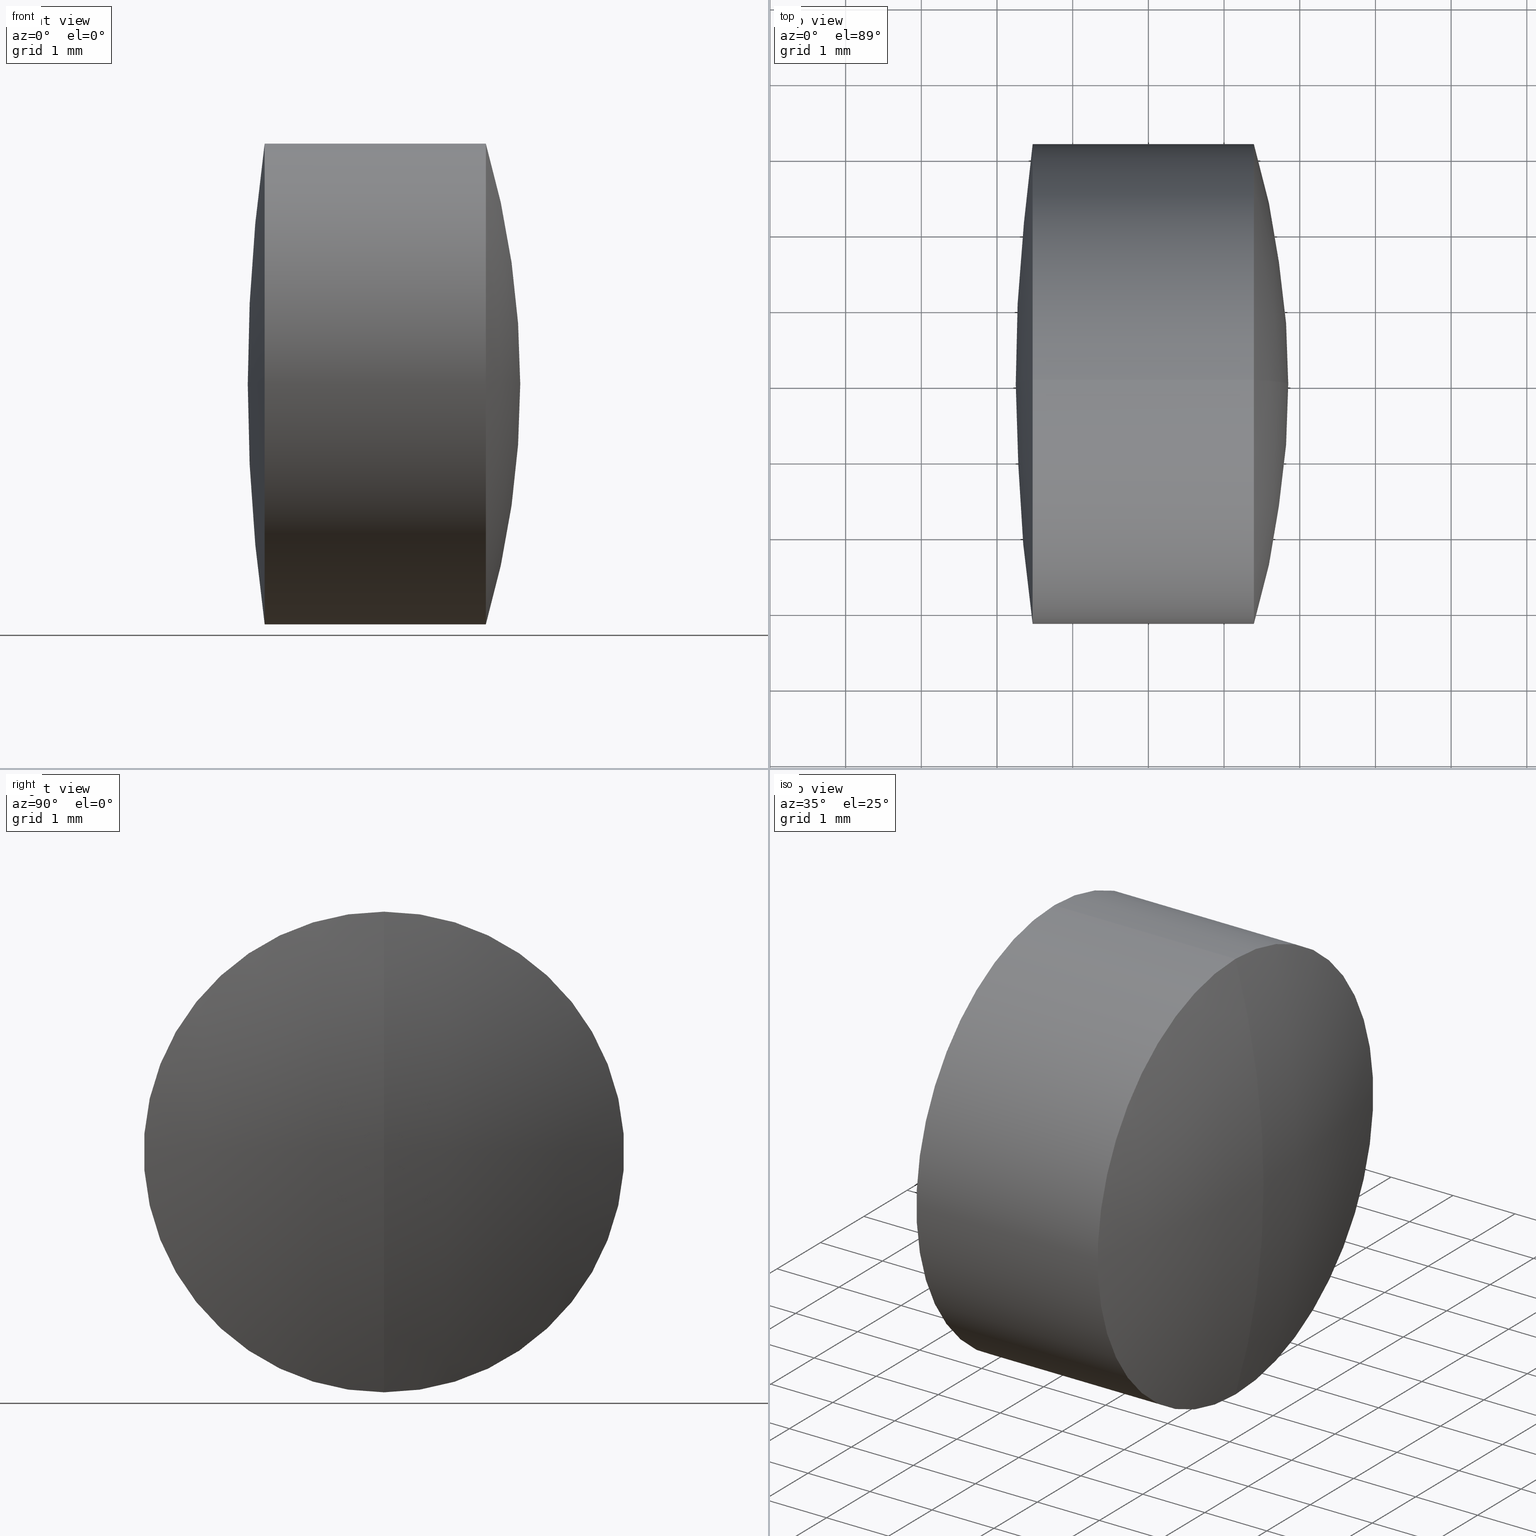
[diagram: canonical four-view strip — front | top / right | iso, engineering-drawing reading convention]
A machine part, canonical four-view strip (front | top / right | iso — engineering-drawing reading convention). The complete STEP part file that produces these views, byte-faithful:
ISO-10303-21;
HEADER;
FILE_DESCRIPTION (( 'STEP AP214' ),
    '1' );
FILE_NAME ('145149.STEP',
    '2019-06-06T06:00:08',
    ( 'user' ),
    ( '΢���й�' ),
    'SwSTEP 2.0',
    'SolidWorks 2016',
    '' );
FILE_SCHEMA (( 'AUTOMOTIVE_DESIGN' ));
ENDSEC;

DATA;
#1 =( NAMED_UNIT ( * ) SI_UNIT ( $, .STERADIAN. ) SOLID_ANGLE_UNIT ( ) );
#2 = LINE ( 'NONE', #154, #38 ) ;
#3 = CARTESIAN_POINT ( 'NONE',  ( -1.342040515916890000, 0.0000000000000000000, 7.023840951586055500E-017 ) ) ;
#4 = PRESENTATION_LAYER_ASSIGNMENT (  '', '', ( #36 ) ) ;
#5 = DIRECTION ( 'NONE',  ( 1.000000000000000000, 0.0000000000000000000, 0.0000000000000000000 ) ) ;
#6 = DIRECTION ( 'NONE',  ( -0.0000000000000000000, -1.000000000000000000, -0.0000000000000000000 ) ) ;
#7 = EDGE_CURVE ( 'NONE', #101, #115, #194, .T. ) ;
#8 = DIRECTION ( 'NONE',  ( -0.0000000000000000000, 1.000000000000000000, 1.224646799147353200E-016 ) ) ;
#9 = FACE_OUTER_BOUND ( 'NONE', #245, .T. ) ;
#10 = ORIENTED_EDGE ( 'NONE', *, *, #323, .T. ) ;
#11 = ORIENTED_EDGE ( 'NONE', *, *, #141, .T. ) ;
#12 = EDGE_CURVE ( 'NONE', #299, #139, #310, .T. ) ;
#13 = EDGE_CURVE ( 'NONE', #185, #115, #188, .T. ) ;
#14 = EDGE_LOOP ( 'NONE', ( #35, #269, #340, #54 ) ) ;
#15 = CARTESIAN_POINT ( 'NONE',  ( 2.377028588039097600, 0.0000000000000000000, 0.0000000000000000000 ) ) ;
#16 = FACE_OUTER_BOUND ( 'NONE', #131, .T. ) ;
#17 = CARTESIAN_POINT ( 'NONE',  ( 23.94795948408310700, 0.0000000000000000000, -4.028288892016745600E-017 ) ) ;
#18 = FACE_OUTER_BOUND ( 'NONE', #100, .T. ) ;
#19 = AXIS2_PLACEMENT_3D ( 'NONE', #120, #59, #186 ) ;
#20 = ORIENTED_EDGE ( 'NONE', *, *, #13, .F. ) ;
#21 = DIRECTION ( 'NONE',  ( -1.000000000000000000, -0.0000000000000000000, -0.0000000000000000000 ) ) ;
#22 = AXIS2_PLACEMENT_3D ( 'NONE', #339, #55, #135 ) ;
#23 = DIRECTION ( 'NONE',  ( 0.0000000000000000000, 0.0000000000000000000, 1.000000000000000000 ) ) ;
#24 = FILL_AREA_STYLE_COLOUR ( '', #259 ) ;
#25 =( NAMED_UNIT ( * ) PLANE_ANGLE_UNIT ( ) SI_UNIT ( $, .RADIAN. ) );
#26 = SPHERICAL_SURFACE ( 'NONE', #230, 22.70000000000001700 ) ;
#27 = COLOUR_RGB ( '',1.000000000000000000, 1.000000000000000000, 1.000000000000000000 ) ;
#28 = PRESENTATION_LAYER_ASSIGNMENT (  '', '', ( #249 ) ) ;
#29 = ORIENTED_EDGE ( 'NONE', *, *, #13, .T. ) ;
#30 = ADVANCED_BREP_SHAPE_REPRESENTATION ( '145149', ( #128, #262, #79 ), #321 ) ;
#31 =( GEOMETRIC_REPRESENTATION_CONTEXT ( 3 ) GLOBAL_UNCERTAINTY_ASSIGNED_CONTEXT ( ( #133 ) ) GLOBAL_UNIT_ASSIGNED_CONTEXT ( ( #218, #108, #105 ) ) REPRESENTATION_CONTEXT ( 'NONE', 'WORKASPACE' ) );
#32 = CARTESIAN_POINT ( 'NONE',  ( -1.342040515916890000, 0.0000000000000000000, 7.023840951586055500E-017 ) ) ;
#33 = APPLICATION_PROTOCOL_DEFINITION ( 'draft international standard', 'automotive_design', 1998, #319 ) ;
#34 = LINE ( 'NONE', #207, #284 ) ;
#35 = ORIENTED_EDGE ( 'NONE', *, *, #48, .F. ) ;
#36 = STYLED_ITEM ( 'NONE', ( #301 ), #128 ) ;
#37 = CARTESIAN_POINT ( 'NONE',  ( 1.471096379993141400, 0.0000000000000000000, 0.0000000000000000000 ) ) ;
#38 = VECTOR ( 'NONE', #102, 1000.000000000000000 ) ;
#39 = ORIENTED_EDGE ( 'NONE', *, *, #208, .T. ) ;
#40 = CARTESIAN_POINT ( 'NONE',  ( 0.0000000000000000000, 0.0000000000000000000, 0.0000000000000000000 ) ) ;
#41 = ORIENTED_EDGE ( 'NONE', *, *, #141, .F. ) ;
#42 = DIRECTION ( 'NONE',  ( -0.0000000000000000000, 1.000000000000000000, 1.224646799147353200E-016 ) ) ;
#43 = ORIENTED_EDGE ( 'NONE', *, *, #125, .F. ) ;
#44 = DIRECTION ( 'NONE',  ( 0.0000000000000000000, 0.0000000000000000000, -1.000000000000000000 ) ) ;
#45 = EDGE_LOOP ( 'NONE', ( #173, #282, #272, #43 ) ) ;
#46 = DIRECTION ( 'NONE',  ( 0.0000000000000000000, -1.224646799147353200E-016, 1.000000000000000000 ) ) ;
#47 = DIRECTION ( 'NONE',  ( 0.0000000000000000000, 0.0000000000000000000, 1.000000000000000000 ) ) ;
#48 = EDGE_CURVE ( 'NONE', #115, #212, #34, .T. ) ;
#49 = PRODUCT ( '145149', '145149', '', ( #343 ) ) ;
#50 = DIRECTION ( 'NONE',  ( 0.0000000000000000000, 1.000000000000000000, 0.0000000000000000000 ) ) ;
#51 = CIRCLE ( 'NONE', #283, 3.174999999999999800 ) ;
#52 = SURFACE_SIDE_STYLE ('',( #243 ) ) ;
#53 = EDGE_CURVE ( 'NONE', #302, #335, #153, .T. ) ;
#54 = ORIENTED_EDGE ( 'NONE', *, *, #208, .F. ) ;
#55 = DIRECTION ( 'NONE',  ( -0.0000000000000000000, -1.000000000000000000, -0.0000000000000000000 ) ) ;
#56 = SPHERICAL_SURFACE ( 'NONE', #268, 4.889999999999999700 ) ;
#57 = AXIS2_PLACEMENT_3D ( 'NONE', #121, #169, #65 ) ;
#58 = CARTESIAN_POINT ( 'NONE',  ( -1.342040515916890000, 0.0000000000000000000, 7.023840951586055500E-017 ) ) ;
#59 = DIRECTION ( 'NONE',  ( -1.000000000000000000, -0.0000000000000000000, -0.0000000000000000000 ) ) ;
#60 = DIRECTION ( 'NONE',  ( 0.0000000000000000000, -1.000000000000000000, -1.224646799147353200E-016 ) ) ;
#61 = EDGE_LOOP ( 'NONE', ( #232, #157, #106 ) ) ;
#62 = AXIS2_PLACEMENT_3D ( 'NONE', #193, #6, #305 ) ;
#63 = SPHERICAL_SURFACE ( 'NONE', #324, 4.889999999999999700 ) ;
#64 = CARTESIAN_POINT ( 'NONE',  ( 1.471096379993142000, 0.0000000000000000000, 3.174999999999998500 ) ) ;
#65 = DIRECTION ( 'NONE',  ( 0.0000000000000000000, 0.0000000000000000000, -1.000000000000000000 ) ) ;
#66 = EDGE_CURVE ( 'NONE', #167, #299, #144, .T. ) ;
#67 = AXIS2_PLACEMENT_3D ( 'NONE', #126, #271, #129 ) ;
#68 = CARTESIAN_POINT ( 'NONE',  ( 1.471096379993142000, 3.888253587292844600E-016, -3.174999999999998500 ) ) ;
#69 = DIRECTION ( 'NONE',  ( -0.0000000000000000000, -1.000000000000000000, -0.0000000000000000000 ) ) ;
#70 = CARTESIAN_POINT ( 'NONE',  ( -0.5519199926577972300, 0.0000000000000000000, 3.174999999999998000 ) ) ;
#71 = UNCERTAINTY_MEASURE_WITH_UNIT (LENGTH_MEASURE( 1.000000000000000100E-005 ), #113, 'distance_accuracy_value', 'NONE');
#72 = EDGE_CURVE ( 'NONE', #182, #212, #266, .T. ) ;
#73 = SURFACE_SIDE_STYLE ('',( #329 ) ) ;
#74 = CIRCLE ( 'NONE', #291, 22.70000000000001700 ) ;
#75 = EDGE_LOOP ( 'NONE', ( #235, #10, #147, #110 ) ) ;
#76 = DIRECTION ( 'NONE',  ( 0.0000000000000000000, 1.000000000000000000, 0.0000000000000000000 ) ) ;
#77 = LINE ( 'NONE', #81, #326 ) ;
#78 = ORIENTED_EDGE ( 'NONE', *, *, #209, .T. ) ;
#79 = AXIS2_PLACEMENT_3D ( 'NONE', #40, #290, #5 ) ;
#80 = EDGE_LOOP ( 'NONE', ( #20, #296, #281 ) ) ;
#81 = CARTESIAN_POINT ( 'NONE',  ( -0.8160621761658039000, 0.0000000000000000000, 3.174999999999999800 ) ) ;
#82 = UNCERTAINTY_MEASURE_WITH_UNIT (LENGTH_MEASURE( 1.000000000000000100E-005 ), #142, 'distance_accuracy_value', 'NONE');
#83 = DIRECTION ( 'NONE',  ( 0.0000000000000000000, 1.224646799147353200E-016, -1.000000000000000000 ) ) ;
#84 = CYLINDRICAL_SURFACE ( 'NONE', #307, 3.174999999999998000 ) ;
#85 = EDGE_LOOP ( 'NONE', ( #320, #346, #11 ) ) ;
#86 = EDGE_CURVE ( 'NONE', #115, #101, #104, .T. ) ;
#87 = DIRECTION ( 'NONE',  ( 0.0000000000000000000, 1.000000000000000000, -0.0000000000000000000 ) ) ;
#88 = FILL_AREA_STYLE ('',( #338 ) ) ;
#89 = DIRECTION ( 'NONE',  ( -1.000000000000000000, -0.0000000000000000000, -0.0000000000000000000 ) ) ;
#90 = EDGE_LOOP ( 'NONE', ( #221, #306, #124 ) ) ;
#91 = DIRECTION ( 'NONE',  ( 0.0000000000000000000, 0.0000000000000000000, -1.000000000000000000 ) ) ;
#92 = ORIENTED_EDGE ( 'NONE', *, *, #72, .T. ) ;
#93 = SURFACE_STYLE_USAGE ( .BOTH. , #331 ) ;
#94 = DIRECTION ( 'NONE',  ( -0.0000000000000000000, -1.000000000000000000, -0.0000000000000000000 ) ) ;
#95 = COLOUR_RGB ( '',1.000000000000000000, 1.000000000000000000, 1.000000000000000000 ) ;
#96 = AXIS2_PLACEMENT_3D ( 'NONE', #114, #345, #199 ) ;
#97 = DIRECTION ( 'NONE',  ( 0.0000000000000000000, 0.0000000000000000000, 1.000000000000000000 ) ) ;
#98 = DIRECTION ( 'NONE',  ( 0.0000000000000000000, 0.0000000000000000000, -1.000000000000000000 ) ) ;
#99 = FACE_OUTER_BOUND ( 'NONE', #61, .T. ) ;
#100 = EDGE_LOOP ( 'NONE', ( #156, #295, #78 ) ) ;
#101 = VERTEX_POINT ( 'NONE', #270 ) ;
#102 = DIRECTION ( 'NONE',  ( -1.000000000000000000, -0.0000000000000000000, -0.0000000000000000000 ) ) ;
#103 = AXIS2_PLACEMENT_3D ( 'NONE', #160, #292, #170 ) ;
#104 = CIRCLE ( 'NONE', #151, 3.174999999999998000 ) ;
#105 =( NAMED_UNIT ( * ) SI_UNIT ( $, .STERADIAN. ) SOLID_ANGLE_UNIT ( ) );
#106 = ORIENTED_EDGE ( 'NONE', *, *, #275, .F. ) ;
#107 = AXIS2_PLACEMENT_3D ( 'NONE', #127, #87, #47 ) ;
#108 =( NAMED_UNIT ( * ) PLANE_ANGLE_UNIT ( ) SI_UNIT ( $, .RADIAN. ) );
#109 = CARTESIAN_POINT ( 'NONE',  ( 2.377028588039097600, 0.0000000000000000000, 0.0000000000000000000 ) ) ;
#110 = ORIENTED_EDGE ( 'NONE', *, *, #112, .F. ) ;
#111 = DIRECTION ( 'NONE',  ( 0.0000000000000000000, 0.0000000000000000000, 1.000000000000000000 ) ) ;
#112 = EDGE_CURVE ( 'NONE', #335, #167, #77, .T. ) ;
#113 =( LENGTH_UNIT ( ) NAMED_UNIT ( * ) SI_UNIT ( .MILLI., .METRE. ) );
#114 = CARTESIAN_POINT ( 'NONE',  ( -0.5519199926577972300, 0.0000000000000000000, 0.0000000000000000000 ) ) ;
#115 = VERTEX_POINT ( 'NONE', #189 ) ;
#116 = ADVANCED_FACE ( 'NONE', ( #99 ), #304, .T. ) ;
#117 = CARTESIAN_POINT ( 'NONE',  ( 23.94795948408310700, 0.0000000000000000000, -4.028288892016745600E-017 ) ) ;
#118 = AXIS2_PLACEMENT_3D ( 'NONE', #37, #322, #97 ) ;
#119 = CIRCLE ( 'NONE', #247, 3.174999999999998500 ) ;
#120 = CARTESIAN_POINT ( 'NONE',  ( 1.471096379993141400, 0.0000000000000000000, 0.0000000000000000000 ) ) ;
#121 = CARTESIAN_POINT ( 'NONE',  ( -1.342040515916890000, 0.0000000000000000000, 7.023840951586055500E-017 ) ) ;
#122 =( NAMED_UNIT ( * ) PLANE_ANGLE_UNIT ( ) SI_UNIT ( $, .RADIAN. ) );
#123 = VERTEX_POINT ( 'NONE', #303 ) ;
#124 = ORIENTED_EDGE ( 'NONE', *, *, #209, .F. ) ;
#125 = EDGE_CURVE ( 'NONE', #299, #167, #258, .T. ) ;
#126 = CARTESIAN_POINT ( 'NONE',  ( 23.94795948408310700, 0.0000000000000000000, -4.028288892016745600E-017 ) ) ;
#127 = CARTESIAN_POINT ( 'NONE',  ( -1.342040515916890000, 0.0000000000000000000, 7.023840951586055500E-017 ) ) ;
#128 = MANIFOLD_SOLID_BREP ( '��ת1', #333 ) ;
#129 = DIRECTION ( 'NONE',  ( 0.0000000000000000000, 0.0000000000000000000, 1.000000000000000000 ) ) ;
#130 = PRODUCT_DEFINITION_FORMATION_WITH_SPECIFIED_SOURCE ( '�κ�', '', #49, .NOT_KNOWN. ) ;
#131 = EDGE_LOOP ( 'NONE', ( #236, #179, #228 ) ) ;
#132 = FILL_AREA_STYLE ('',( #278 ) ) ;
#133 = UNCERTAINTY_MEASURE_WITH_UNIT (LENGTH_MEASURE( 1.000000000000000100E-005 ), #218, 'distance_accuracy_value', 'NONE');
#134 = SHAPE_DEFINITION_REPRESENTATION ( #226, #30 ) ;
#135 = DIRECTION ( 'NONE',  ( 0.0000000000000000000, 0.0000000000000000000, -1.000000000000000000 ) ) ;
#136 = DIRECTION ( 'NONE',  ( 0.0000000000000000000, 0.0000000000000000000, 1.000000000000000000 ) ) ;
#137 = CYLINDRICAL_SURFACE ( 'NONE', #96, 3.174999999999998000 ) ;
#138 = AXIS2_PLACEMENT_3D ( 'NONE', #313, #205, #184 ) ;
#139 = VERTEX_POINT ( 'NONE', #287 ) ;
#140 = FILL_AREA_STYLE ('',( #24 ) ) ;
#141 = EDGE_CURVE ( 'NONE', #123, #212, #119, .T. ) ;
#142 =( LENGTH_UNIT ( ) NAMED_UNIT ( * ) SI_UNIT ( .MILLI., .METRE. ) );
#143 = ADVANCED_FACE ( 'NONE', ( #211 ), #255, .T. ) ;
#144 = CIRCLE ( 'NONE', #19, 3.174999999999999800 ) ;
#145 = ADVANCED_FACE ( 'NONE', ( #9 ), #294, .T. ) ;
#146 = FACE_OUTER_BOUND ( 'NONE', #168, .T. ) ;
#147 = ORIENTED_EDGE ( 'NONE', *, *, #66, .F. ) ;
#148 = DIRECTION ( 'NONE',  ( -1.000000000000000000, -0.0000000000000000000, -0.0000000000000000000 ) ) ;
#149 = SPHERICAL_SURFACE ( 'NONE', #198, 4.889999999999999700 ) ;
#150 = DIRECTION ( 'NONE',  ( 0.0000000000000000000, -1.000000000000000000, 0.0000000000000000000 ) ) ;
#151 = AXIS2_PLACEMENT_3D ( 'NONE', #277, #202, #190 ) ;
#152 = CARTESIAN_POINT ( 'NONE',  ( 23.94795948408310700, 0.0000000000000000000, -4.028288892016745600E-017 ) ) ;
#153 = CIRCLE ( 'NONE', #57, 4.889999999999999700 ) ;
#154 = CARTESIAN_POINT ( 'NONE',  ( -0.8160621761658039000, 3.888253587292846100E-016, -3.174999999999999800 ) ) ;
#155 = CARTESIAN_POINT ( 'NONE',  ( 2.377028588039098900, 0.0000000000000000000, -3.174999999999998500 ) ) ;
#156 = ORIENTED_EDGE ( 'NONE', *, *, #12, .F. ) ;
#157 = ORIENTED_EDGE ( 'NONE', *, *, #192, .T. ) ;
#158 = AXIS2_PLACEMENT_3D ( 'NONE', #273, #42, #46 ) ;
#159 = DIRECTION ( 'NONE',  ( 0.0000000000000000000, 0.0000000000000000000, 1.000000000000000000 ) ) ;
#160 = CARTESIAN_POINT ( 'NONE',  ( -0.8160621761658039000, 0.0000000000000000000, 0.0000000000000000000 ) ) ;
#161 = CYLINDRICAL_SURFACE ( 'NONE', #164, 3.174999999999999800 ) ;
#162 = DIRECTION ( 'NONE',  ( 0.0000000000000000000, 0.0000000000000000000, 1.000000000000000000 ) ) ;
#163 = SPHERICAL_SURFACE ( 'NONE', #62, 11.32000000000000000 ) ;
#164 = AXIS2_PLACEMENT_3D ( 'NONE', #316, #214, #23 ) ;
#165 = ORIENTED_EDGE ( 'NONE', *, *, #7, .F. ) ;
#166 = FACE_OUTER_BOUND ( 'NONE', #196, .T. ) ;
#167 = VERTEX_POINT ( 'NONE', #64 ) ;
#168 = EDGE_LOOP ( 'NONE', ( #286, #92, #39 ) ) ;
#169 = DIRECTION ( 'NONE',  ( 0.0000000000000000000, -1.000000000000000000, 0.0000000000000000000 ) ) ;
#170 = DIRECTION ( 'NONE',  ( 0.0000000000000000000, 0.0000000000000000000, 1.000000000000000000 ) ) ;
#171 = AXIS2_PLACEMENT_3D ( 'NONE', #176, #89, #327 ) ;
#172 = CIRCLE ( 'NONE', #187, 3.174999999999998500 ) ;
#173 = ORIENTED_EDGE ( 'NONE', *, *, #323, .F. ) ;
#174 = FACE_OUTER_BOUND ( 'NONE', #80, .T. ) ;
#175 = ADVANCED_FACE ( 'NONE', ( #216 ), #84, .T. ) ;
#176 = CARTESIAN_POINT ( 'NONE',  ( 4.393583028086461600, 0.0000000000000000000, 0.0000000000000000000 ) ) ;
#177 = ORIENTED_EDGE ( 'NONE', *, *, #297, .F. ) ;
#178 = DIRECTION ( 'NONE',  ( 0.0000000000000000000, 0.0000000000000000000, 1.000000000000000000 ) ) ;
#179 = ORIENTED_EDGE ( 'NONE', *, *, #53, .T. ) ;
#180 = ADVANCED_FACE ( 'NONE', ( #146 ), #63, .F. ) ;
#181 = CARTESIAN_POINT ( 'NONE',  ( -6.472040515916891200, 0.0000000000000000000, 0.0000000000000000000 ) ) ;
#182 = VERTEX_POINT ( 'NONE', #257 ) ;
#183 =( GEOMETRIC_REPRESENTATION_CONTEXT ( 3 ) GLOBAL_UNCERTAINTY_ASSIGNED_CONTEXT ( ( #71 ) ) GLOBAL_UNIT_ASSIGNED_CONTEXT ( ( #113, #25, #241 ) ) REPRESENTATION_CONTEXT ( 'NONE', 'WORKASPACE' ) );
#184 = DIRECTION ( 'NONE',  ( 0.0000000000000000000, 1.224646799147353200E-016, -1.000000000000000000 ) ) ;
#185 = VERTEX_POINT ( 'NONE', #215 ) ;
#186 = DIRECTION ( 'NONE',  ( 0.0000000000000000000, 0.0000000000000000000, 1.000000000000000000 ) ) ;
#187 = AXIS2_PLACEMENT_3D ( 'NONE', #289, #242, #178 ) ;
#188 = CIRCLE ( 'NONE', #261, 11.32000000000000000 ) ;
#189 = CARTESIAN_POINT ( 'NONE',  ( 4.393583028086461600, 0.0000000000000000000, -3.175000000000001600 ) ) ;
#190 = DIRECTION ( 'NONE',  ( 0.0000000000000000000, 0.0000000000000000000, 1.000000000000000000 ) ) ;
#191 =( LENGTH_UNIT ( ) NAMED_UNIT ( * ) SI_UNIT ( .MILLI., .METRE. ) );
#192 = EDGE_CURVE ( 'NONE', #302, #312, #217, .T. ) ;
#193 = CARTESIAN_POINT ( 'NONE',  ( -6.472040515916891200, 0.0000000000000000000, 0.0000000000000000000 ) ) ;
#194 = CIRCLE ( 'NONE', #171, 3.174999999999998000 ) ;
#195 = DIRECTION ( 'NONE',  ( 0.0000000000000000000, 0.0000000000000000000, 1.000000000000000000 ) ) ;
#196 = EDGE_LOOP ( 'NONE', ( #244, #204, #41, #250 ) ) ;
#197 = UNCERTAINTY_MEASURE_WITH_UNIT (LENGTH_MEASURE( 1.000000000000000100E-005 ), #191, 'distance_accuracy_value', 'NONE');
#198 = AXIS2_PLACEMENT_3D ( 'NONE', #210, #76, #248 ) ;
#199 = DIRECTION ( 'NONE',  ( 0.0000000000000000000, 0.0000000000000000000, 1.000000000000000000 ) ) ;
#200 = ADVANCED_FACE ( 'NONE', ( #166 ), #137, .T. ) ;
#201 = ADVANCED_FACE ( 'NONE', ( #18 ), #26, .T. ) ;
#202 = DIRECTION ( 'NONE',  ( -1.000000000000000000, -0.0000000000000000000, -0.0000000000000000000 ) ) ;
#203 = AXIS2_PLACEMENT_3D ( 'NONE', #15, #315, #195 ) ;
#204 = ORIENTED_EDGE ( 'NONE', *, *, #48, .T. ) ;
#205 = DIRECTION ( 'NONE',  ( 0.0000000000000000000, -1.000000000000000000, -1.224646799147353200E-016 ) ) ;
#206 = ADVANCED_FACE ( 'NONE', ( #239 ), #161, .T. ) ;
#207 = CARTESIAN_POINT ( 'NONE',  ( -0.5519199926577972300, 3.888253587292844600E-016, -3.174999999999998000 ) ) ;
#208 = EDGE_CURVE ( 'NONE', #212, #123, #172, .T. ) ;
#209 = EDGE_CURVE ( 'NONE', #167, #139, #74, .T. ) ;
#210 = CARTESIAN_POINT ( 'NONE',  ( -1.342040515916890000, 0.0000000000000000000, 7.023840951586055500E-017 ) ) ;
#211 = FACE_OUTER_BOUND ( 'NONE', #90, .T. ) ;
#212 = VERTEX_POINT ( 'NONE', #155 ) ;
#213 = PRESENTATION_LAYER_ASSIGNMENT (  '', '', ( #314 ) ) ;
#214 = DIRECTION ( 'NONE',  ( -1.000000000000000000, -0.0000000000000000000, -0.0000000000000000000 ) ) ;
#215 = CARTESIAN_POINT ( 'NONE',  ( 4.847959484083109100, 0.0000000000000000000, -6.931500883174019100E-016 ) ) ;
#216 = FACE_OUTER_BOUND ( 'NONE', #14, .T. ) ;
#217 = CIRCLE ( 'NONE', #158, 4.889999999999999700 ) ;
#218 =( LENGTH_UNIT ( ) NAMED_UNIT ( * ) SI_UNIT ( .MILLI., .METRE. ) );
#219 = SURFACE_STYLE_FILL_AREA ( #132 ) ;
#220 =( NAMED_UNIT ( * ) PLANE_ANGLE_UNIT ( ) SI_UNIT ( $, .RADIAN. ) );
#221 = ORIENTED_EDGE ( 'NONE', *, *, #66, .T. ) ;
#222 = CIRCLE ( 'NONE', #138, 4.889999999999999700 ) ;
#223 = EDGE_CURVE ( 'NONE', #312, #335, #233, .T. ) ;
#224 = LINE ( 'NONE', #70, #347 ) ;
#225 = DIRECTION ( 'NONE',  ( 0.0000000000000000000, -1.224646799147353200E-016, 1.000000000000000000 ) ) ;
#226 = PRODUCT_DEFINITION_SHAPE ( 'NONE', 'NONE',  #334 ) ;
#227 = DIRECTION ( 'NONE',  ( -1.000000000000000000, -0.0000000000000000000, -0.0000000000000000000 ) ) ;
#228 = ORIENTED_EDGE ( 'NONE', *, *, #223, .F. ) ;
#229 = DIRECTION ( 'NONE',  ( 0.0000000000000000000, 0.0000000000000000000, 1.000000000000000000 ) ) ;
#230 = AXIS2_PLACEMENT_3D ( 'NONE', #17, #337, #159 ) ;
#231 = EDGE_CURVE ( 'NONE', #182, #123, #222, .T. ) ;
#232 = ORIENTED_EDGE ( 'NONE', *, *, #53, .F. ) ;
#233 = CIRCLE ( 'NONE', #203, 3.174999999999999800 ) ;
#234 = EDGE_CURVE ( 'NONE', #101, #123, #224, .T. ) ;
#235 = ORIENTED_EDGE ( 'NONE', *, *, #275, .T. ) ;
#236 = ORIENTED_EDGE ( 'NONE', *, *, #192, .F. ) ;
#237 = CARTESIAN_POINT ( 'NONE',  ( -0.5519199926577972300, 0.0000000000000000000, 0.0000000000000000000 ) ) ;
#238 = PRESENTATION_STYLE_ASSIGNMENT (( #274 ) ) ;
#239 = FACE_OUTER_BOUND ( 'NONE', #45, .T. ) ;
#240 = AXIS2_PLACEMENT_3D ( 'NONE', #117, #8, #225 ) ;
#241 =( NAMED_UNIT ( * ) SI_UNIT ( $, .STERADIAN. ) SOLID_ANGLE_UNIT ( ) );
#242 = DIRECTION ( 'NONE',  ( -1.000000000000000000, -0.0000000000000000000, -0.0000000000000000000 ) ) ;
#243 = SURFACE_STYLE_FILL_AREA ( #88 ) ;
#244 = ORIENTED_EDGE ( 'NONE', *, *, #7, .T. ) ;
#245 = EDGE_LOOP ( 'NONE', ( #177, #29, #165 ) ) ;
#246 = ADVANCED_FACE ( 'NONE', ( #288 ), #317, .T. ) ;
#247 = AXIS2_PLACEMENT_3D ( 'NONE', #263, #251, #162 ) ;
#248 = DIRECTION ( 'NONE',  ( 0.0000000000000000000, 0.0000000000000000000, 1.000000000000000000 ) ) ;
#249 = STYLED_ITEM ( 'NONE', ( #309 ), #262 ) ;
#250 = ORIENTED_EDGE ( 'NONE', *, *, #234, .F. ) ;
#251 = DIRECTION ( 'NONE',  ( -1.000000000000000000, -0.0000000000000000000, -0.0000000000000000000 ) ) ;
#252 = PRODUCT_DEFINITION_CONTEXT ( 'detailed design', #319, 'design' ) ;
#253 = CARTESIAN_POINT ( 'NONE',  ( 2.377028588039097600, 3.888253587292846100E-016, -3.174999999999999800 ) ) ;
#254 = ADVANCED_FACE ( 'NONE', ( #174 ), #163, .T. ) ;
#255 = SPHERICAL_SURFACE ( 'NONE', #67, 22.70000000000001700 ) ;
#256 =( GEOMETRIC_REPRESENTATION_CONTEXT ( 3 ) GLOBAL_UNCERTAINTY_ASSIGNED_CONTEXT ( ( #82 ) ) GLOBAL_UNIT_ASSIGNED_CONTEXT ( ( #142, #220, #293 ) ) REPRESENTATION_CONTEXT ( 'NONE', 'WORKASPACE' ) );
#257 = CARTESIAN_POINT ( 'NONE',  ( 3.547959484083109200, 0.0000000000000000000, -2.291877328756672900E-016 ) ) ;
#258 = CIRCLE ( 'NONE', #118, 3.174999999999999800 ) ;
#259 = COLOUR_RGB ( '',1.000000000000000000, 1.000000000000000000, 1.000000000000000000 ) ;
#260 = APPLICATION_CONTEXT ( 'automotive_design' ) ;
#261 = AXIS2_PLACEMENT_3D ( 'NONE', #181, #342, #111 ) ;
#262 = MANIFOLD_SOLID_BREP ( '��ת2', #311 ) ;
#263 = CARTESIAN_POINT ( 'NONE',  ( 2.377028588039098900, 0.0000000000000000000, 0.0000000000000000000 ) ) ;
#264 = CARTESIAN_POINT ( 'NONE',  ( 2.377028588039097600, 0.0000000000000000000, 3.174999999999999800 ) ) ;
#265 = CARTESIAN_POINT ( 'NONE',  ( -6.472040515916891200, 0.0000000000000000000, 0.0000000000000000000 ) ) ;
#266 = CIRCLE ( 'NONE', #107, 4.889999999999999700 ) ;
#267 = PRODUCT_RELATED_PRODUCT_CATEGORY ( 'part', '', ( #49 ) ) ;
#268 = AXIS2_PLACEMENT_3D ( 'NONE', #3, #94, #91 ) ;
#269 = ORIENTED_EDGE ( 'NONE', *, *, #86, .T. ) ;
#270 = CARTESIAN_POINT ( 'NONE',  ( 4.393583028086461600, -3.888253587292848500E-016, 3.175000000000001600 ) ) ;
#271 = DIRECTION ( 'NONE',  ( 0.0000000000000000000, 1.000000000000000000, 0.0000000000000000000 ) ) ;
#272 = ORIENTED_EDGE ( 'NONE', *, *, #112, .T. ) ;
#273 = CARTESIAN_POINT ( 'NONE',  ( -1.342040515916890000, 0.0000000000000000000, 7.023840951586055500E-017 ) ) ;
#274 = SURFACE_STYLE_USAGE ( .BOTH. , #73 ) ;
#275 = EDGE_CURVE ( 'NONE', #335, #312, #51, .T. ) ;
#276 = SURFACE_STYLE_USAGE ( .BOTH. , #52 ) ;
#277 = CARTESIAN_POINT ( 'NONE',  ( 4.393583028086461600, 0.0000000000000000000, 0.0000000000000000000 ) ) ;
#278 = FILL_AREA_STYLE_COLOUR ( '', #95 ) ;
#279 = ADVANCED_FACE ( 'NONE', ( #328 ), #56, .F. ) ;
#280 = MECHANICAL_DESIGN_GEOMETRIC_PRESENTATION_REPRESENTATION (  '', ( #314 ), #183 ) ;
#281 = ORIENTED_EDGE ( 'NONE', *, *, #86, .F. ) ;
#282 = ORIENTED_EDGE ( 'NONE', *, *, #223, .T. ) ;
#283 = AXIS2_PLACEMENT_3D ( 'NONE', #109, #227, #285 ) ;
#284 = VECTOR ( 'NONE', #148, 1000.000000000000000 ) ;
#285 = DIRECTION ( 'NONE',  ( 0.0000000000000000000, 0.0000000000000000000, 1.000000000000000000 ) ) ;
#286 = ORIENTED_EDGE ( 'NONE', *, *, #231, .F. ) ;
#287 = CARTESIAN_POINT ( 'NONE',  ( 1.247959484083089400, 0.0000000000000000000, 1.349691228112079600E-015 ) ) ;
#288 = FACE_OUTER_BOUND ( 'NONE', #75, .T. ) ;
#289 = CARTESIAN_POINT ( 'NONE',  ( 2.377028588039098900, 0.0000000000000000000, 0.0000000000000000000 ) ) ;
#290 = DIRECTION ( 'NONE',  ( 0.0000000000000000000, 0.0000000000000000000, 1.000000000000000000 ) ) ;
#291 = AXIS2_PLACEMENT_3D ( 'NONE', #152, #150, #98 ) ;
#292 = DIRECTION ( 'NONE',  ( -1.000000000000000000, -0.0000000000000000000, -0.0000000000000000000 ) ) ;
#293 =( NAMED_UNIT ( * ) SI_UNIT ( $, .STERADIAN. ) SOLID_ANGLE_UNIT ( ) );
#294 = SPHERICAL_SURFACE ( 'NONE', #22, 11.32000000000000000 ) ;
#295 = ORIENTED_EDGE ( 'NONE', *, *, #125, .T. ) ;
#296 = ORIENTED_EDGE ( 'NONE', *, *, #297, .T. ) ;
#297 = EDGE_CURVE ( 'NONE', #185, #101, #336, .T. ) ;
#298 = CARTESIAN_POINT ( 'NONE',  ( 3.547959484083109200, 0.0000000000000000000, 3.696645519073884000E-016 ) ) ;
#299 = VERTEX_POINT ( 'NONE', #68 ) ;
#300 = AXIS2_PLACEMENT_3D ( 'NONE', #265, #60, #83 ) ;
#301 = PRESENTATION_STYLE_ASSIGNMENT (( #93 ) ) ;
#302 = VERTEX_POINT ( 'NONE', #298 ) ;
#303 = CARTESIAN_POINT ( 'NONE',  ( 2.377028588039098900, -3.888253587292845100E-016, 3.174999999999998500 ) ) ;
#304 = SPHERICAL_SURFACE ( 'NONE', #318, 4.889999999999999700 ) ;
#305 = DIRECTION ( 'NONE',  ( 0.0000000000000000000, 0.0000000000000000000, -1.000000000000000000 ) ) ;
#306 = ORIENTED_EDGE ( 'NONE', *, *, #12, .T. ) ;
#307 = AXIS2_PLACEMENT_3D ( 'NONE', #237, #21, #136 ) ;
#308 = APPLICATION_PROTOCOL_DEFINITION ( 'draft international standard', 'automotive_design', 1998, #260 ) ;
#309 = PRESENTATION_STYLE_ASSIGNMENT (( #276 ) ) ;
#310 = CIRCLE ( 'NONE', #240, 22.70000000000001700 ) ;
#311 = CLOSED_SHELL ( 'NONE', ( #200, #254, #279, #180, #145, #175 ) ) ;
#312 = VERTEX_POINT ( 'NONE', #253 ) ;
#313 = CARTESIAN_POINT ( 'NONE',  ( -1.342040515916890000, 0.0000000000000000000, 7.023840951586055500E-017 ) ) ;
#314 = STYLED_ITEM ( 'NONE', ( #238 ), #30 ) ;
#315 = DIRECTION ( 'NONE',  ( -1.000000000000000000, -0.0000000000000000000, -0.0000000000000000000 ) ) ;
#316 = CARTESIAN_POINT ( 'NONE',  ( -0.8160621761658039000, 0.0000000000000000000, 0.0000000000000000000 ) ) ;
#317 = CYLINDRICAL_SURFACE ( 'NONE', #103, 3.174999999999999800 ) ;
#318 = AXIS2_PLACEMENT_3D ( 'NONE', #32, #50, #229 ) ;
#319 = APPLICATION_CONTEXT ( 'automotive_design' ) ;
#320 = ORIENTED_EDGE ( 'NONE', *, *, #72, .F. ) ;
#321 =( GEOMETRIC_REPRESENTATION_CONTEXT ( 3 ) GLOBAL_UNCERTAINTY_ASSIGNED_CONTEXT ( ( #197 ) ) GLOBAL_UNIT_ASSIGNED_CONTEXT ( ( #191, #122, #1 ) ) REPRESENTATION_CONTEXT ( 'NONE', 'WORKASPACE' ) );
#322 = DIRECTION ( 'NONE',  ( -1.000000000000000000, -0.0000000000000000000, -0.0000000000000000000 ) ) ;
#323 = EDGE_CURVE ( 'NONE', #312, #299, #2, .T. ) ;
#324 = AXIS2_PLACEMENT_3D ( 'NONE', #58, #69, #44 ) ;
#325 = DIRECTION ( 'NONE',  ( -1.000000000000000000, -0.0000000000000000000, -0.0000000000000000000 ) ) ;
#326 = VECTOR ( 'NONE', #325, 1000.000000000000000 ) ;
#327 = DIRECTION ( 'NONE',  ( 0.0000000000000000000, 0.0000000000000000000, 1.000000000000000000 ) ) ;
#328 = FACE_OUTER_BOUND ( 'NONE', #85, .T. ) ;
#329 = SURFACE_STYLE_FILL_AREA ( #140 ) ;
#330 = ADVANCED_FACE ( 'NONE', ( #16 ), #149, .T. ) ;
#331 = SURFACE_SIDE_STYLE ('',( #219 ) ) ;
#332 = DIRECTION ( 'NONE',  ( -1.000000000000000000, -0.0000000000000000000, -0.0000000000000000000 ) ) ;
#333 = CLOSED_SHELL ( 'NONE', ( #116, #246, #143, #201, #206, #330 ) ) ;
#334 = PRODUCT_DEFINITION ( 'δ֪', '', #130, #252 ) ;
#335 = VERTEX_POINT ( 'NONE', #264 ) ;
#336 = CIRCLE ( 'NONE', #300, 11.32000000000000000 ) ;
#337 = DIRECTION ( 'NONE',  ( 0.0000000000000000000, 1.000000000000000000, 0.0000000000000000000 ) ) ;
#338 = FILL_AREA_STYLE_COLOUR ( '', #27 ) ;
#339 = CARTESIAN_POINT ( 'NONE',  ( -6.472040515916891200, 0.0000000000000000000, 0.0000000000000000000 ) ) ;
#340 = ORIENTED_EDGE ( 'NONE', *, *, #234, .T. ) ;
#341 = MECHANICAL_DESIGN_GEOMETRIC_PRESENTATION_REPRESENTATION (  '', ( #249 ), #31 ) ;
#342 = DIRECTION ( 'NONE',  ( 0.0000000000000000000, 1.000000000000000000, -0.0000000000000000000 ) ) ;
#343 = PRODUCT_CONTEXT ( 'NONE', #260, 'mechanical' ) ;
#344 = MECHANICAL_DESIGN_GEOMETRIC_PRESENTATION_REPRESENTATION (  '', ( #36 ), #256 ) ;
#345 = DIRECTION ( 'NONE',  ( -1.000000000000000000, -0.0000000000000000000, -0.0000000000000000000 ) ) ;
#346 = ORIENTED_EDGE ( 'NONE', *, *, #231, .T. ) ;
#347 = VECTOR ( 'NONE', #332, 1000.000000000000000 ) ;
ENDSEC;
END-ISO-10303-21;
